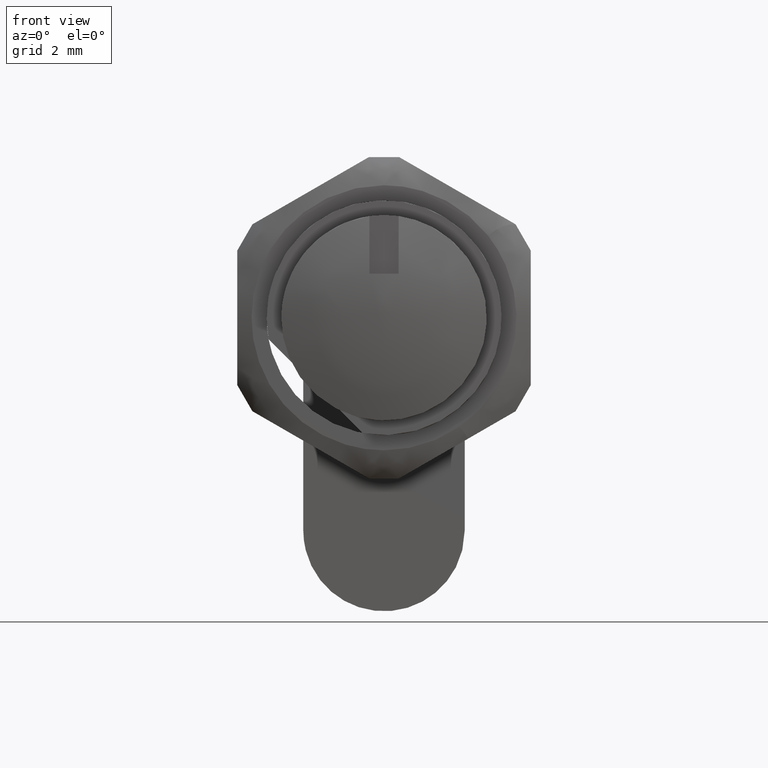
[diagram: clean part render]
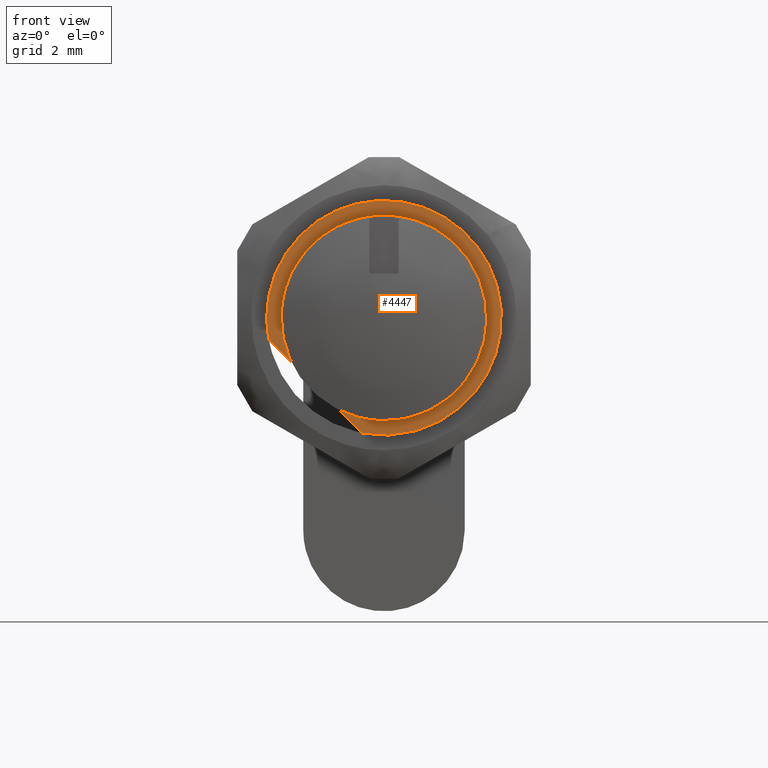
[diagram: same view with one face highlighted and labeled with its STEP entity id]
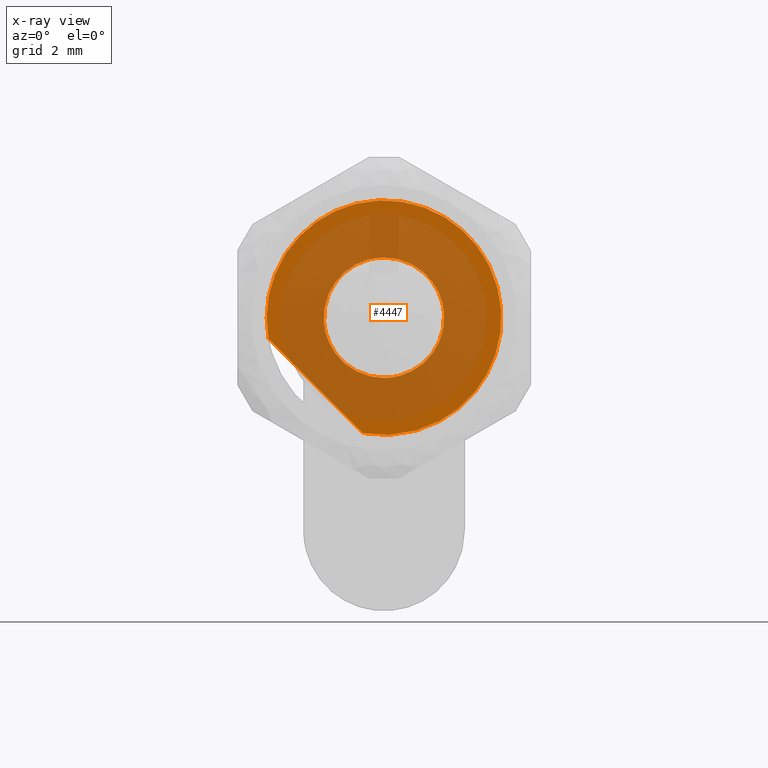
[diagram: x-ray of the same camera — body ghosted, the highlighted face saturated]
A machine part, front view. The second image highlights one B-rep face of the part: STEP entity #4447.
The next image is the same camera in x-ray: the body ghosted, the highlighted face saturated — about 72% of this face is hidden behind the body in this view.
In plain terms, the highlighted face is a freeform B-spline surface patch.
Its self-contained STEP definition (entity closure, byte-faithful):
#3870=CARTESIAN_POINT('',(4.500000000000000,2.043680534062043,176.517780852603210));
#3871=VERTEX_POINT('',#3870);
#3877=CARTESIAN_POINT('',(4.500000000000000,7.105427E-015,174.628622000000010));
#3878=VERTEX_POINT('',#3877);
#3879=CARTESIAN_POINT('',(4.500000000000000,7.105427E-015,174.628622000000010));
#3880=CARTESIAN_POINT('',(4.500000000000000,1.895000505751339,174.628621999999980));
#3881=CARTESIAN_POINT('',(4.500000000000000,2.043680534062042,176.517780852603180));
#3889=(BOUNDED_CURVE()B_SPLINE_CURVE(2,(#3879,#3880,#3881),.UNSPECIFIED.,.F.,.U.)B_SPLINE_CURVE_WITH_KNOTS((3,3),(0.0,0.236331300439055),.UNSPECIFIED.)CURVE()GEOMETRIC_REPRESENTATION_ITEM()RATIONAL_B_SPLINE_CURVE((1.0,0.723120658832144,0.969723355767554))REPRESENTATION_ITEM(''));
#3890=EDGE_CURVE('',#3878,#3871,#3889,.T.);
#3892=CARTESIAN_POINT('',(4.500000000000000,-2.043680534062027,176.839463147396800));
#3893=VERTEX_POINT('',#3892);
#3894=CARTESIAN_POINT('',(4.500000000000000,-2.043680534062028,176.839463147396830));
#3895=CARTESIAN_POINT('',(4.500000000000000,-2.049999999999993,176.759166720525830));
#3896=CARTESIAN_POINT('',(4.500000000000000,-2.049999999999993,176.678621999999990));
#3897=CARTESIAN_POINT('',(4.500000000000000,-2.049999999999994,174.628621999999980));
#3898=CARTESIAN_POINT('',(4.500000000000000,7.105427E-015,174.628622000000010));
#3906=(BOUNDED_CURVE()B_SPLINE_CURVE(2,(#3894,#3895,#3896,#3897,#3898),.UNSPECIFIED.,.F.,.U.)B_SPLINE_CURVE_WITH_KNOTS((3,2,3),(0.736331300439052,0.750000000000000,1.0),.UNSPECIFIED.)CURVE()GEOMETRIC_REPRESENTATION_ITEM()RATIONAL_B_SPLINE_CURVE((0.969723355767547,0.983986122354399,1.0,0.707106781186547,1.0))REPRESENTATION_ITEM(''));
#3907=EDGE_CURVE('',#3893,#3878,#3906,.T.);
#3983=CARTESIAN_POINT('',(4.500000000000000,7.105427E-015,178.728622000000000));
#3984=VERTEX_POINT('',#3983);
#3985=CARTESIAN_POINT('',(4.500000000000000,7.105427E-015,178.728622000000000));
#3986=CARTESIAN_POINT('',(4.500000000000001,-1.895000505751289,178.728622000000030));
#3987=CARTESIAN_POINT('',(4.500000000000000,-2.043680534062028,176.839463147396830));
#3995=(BOUNDED_CURVE()B_SPLINE_CURVE(2,(#3985,#3986,#3987),.UNSPECIFIED.,.F.,.U.)B_SPLINE_CURVE_WITH_KNOTS((3,3),(0.500000000000000,0.736331300439052),.UNSPECIFIED.)CURVE()GEOMETRIC_REPRESENTATION_ITEM()RATIONAL_B_SPLINE_CURVE((1.0,0.723120658832148,0.969723355767548))REPRESENTATION_ITEM(''));
#3996=EDGE_CURVE('',#3984,#3893,#3995,.T.);
#3998=CARTESIAN_POINT('',(4.500000000000000,2.043680534062042,176.517780852603210));
#3999=CARTESIAN_POINT('',(4.500000000000000,2.050000000000007,176.598077279474180));
#4000=CARTESIAN_POINT('',(4.500000000000000,2.050000000000007,176.678621999999990));
#4001=CARTESIAN_POINT('',(4.500000000000000,2.050000000000007,178.728622000000090));
#4002=CARTESIAN_POINT('',(4.500000000000000,7.105427E-015,178.728622000000000));
#4010=(BOUNDED_CURVE()B_SPLINE_CURVE(2,(#3998,#3999,#4000,#4001,#4002),.UNSPECIFIED.,.F.,.U.)B_SPLINE_CURVE_WITH_KNOTS((3,2,3),(0.236331300439055,0.250000000000000,0.500000000000000),.UNSPECIFIED.)CURVE()GEOMETRIC_REPRESENTATION_ITEM()RATIONAL_B_SPLINE_CURVE((0.969723355767554,0.983986122354404,1.0,0.707106781186547,1.0))REPRESENTATION_ITEM(''));
#4011=EDGE_CURVE('',#3871,#3984,#4010,.T.);
#4247=CARTESIAN_POINT('',(4.499999999999949,0.735015641601022,172.746732885770000));
#4248=VERTEX_POINT('',#4247);
#4254=CARTESIAN_POINT('',(4.499999999999949,3.931889114230184,175.943606358398990));
#4255=VERTEX_POINT('',#4254);
#4256=CARTESIAN_POINT('',(4.499999999999949,0.735015641601022,172.746732885770000));
#4257=CARTESIAN_POINT('',(4.499999999999949,3.931889114230184,175.943606358398990));
#4258=QUASI_UNIFORM_CURVE('',1,(#4256,#4257),.UNSPECIFIED.,.F.,.U.);
#4259=EDGE_CURVE('',#4248,#4255,#4258,.T.);
#4307=CARTESIAN_POINT('',(4.499999999999949,0.735015641601054,172.746732885769800));
#4308=CARTESIAN_POINT('',(4.499999999999949,-2.163518267899826,172.204889588744180));
#4309=CARTESIAN_POINT('',(4.499999999999949,-3.538511243755323,174.813430809312790));
#4310=CARTESIAN_POINT('',(4.499999999999949,-4.913504219610821,177.421972029881540));
#4311=CARTESIAN_POINT('',(4.499999999999949,-2.828427124746209,179.507049124746200));
#4312=CARTESIAN_POINT('',(4.499999999999949,-0.743350029881596,181.592126219610800));
#4313=CARTESIAN_POINT('',(4.499999999999949,1.865191190687163,180.217133243755310));
#4314=CARTESIAN_POINT('',(4.499999999999949,4.473732411255917,178.842140267899820));
#4315=CARTESIAN_POINT('',(4.499999999999949,3.931889114230190,175.943606358398990));
#4323=(BOUNDED_CURVE()B_SPLINE_CURVE(2,(#4307,#4308,#4309,#4310,#4311,#4312,#4313,#4314,#4315),.UNSPECIFIED.,.F.,.U.)B_SPLINE_CURVE_WITH_KNOTS((3,2,2,2,3),(0.0,0.250000000000000,0.500000000000000,0.750000000000000,1.0),.UNSPECIFIED.)CURVE()GEOMETRIC_REPRESENTATION_ITEM()RATIONAL_B_SPLINE_CURVE((1.0,0.804923595490585,1.0,0.804923595490585,1.0,0.804923595490585,1.0,0.804923595490585,1.0))REPRESENTATION_ITEM(''));
#4324=EDGE_CURVE('',#4248,#4255,#4323,.T.);
#4432=CARTESIAN_POINT('',(4.500000000000000,-4.391607831327672,181.070233325242100));
#4433=CARTESIAN_POINT('',(4.500000000000000,4.398721197792971,181.070233325242100));
#4434=CARTESIAN_POINT('',(4.500000000000000,-4.391607831327672,172.279894792061410));
#4435=CARTESIAN_POINT('',(4.500000000000000,4.398721197792971,172.279894792061410));
#4436=B_SPLINE_SURFACE_WITH_KNOTS('',1,1,((#4432,#4434),(#4433,#4435)),.UNSPECIFIED.,.F.,.F.,.U.,(2,2),(2,2),(0.0,8.790329029120642),(0.0,8.790338533180631),.UNSPECIFIED.);
#4437=ORIENTED_EDGE('',*,*,#4324,.T.);
#4438=ORIENTED_EDGE('',*,*,#4259,.F.);
#4439=EDGE_LOOP('',(#4437,#4438));
#4440=FACE_OUTER_BOUND('',#4439,.T.);
#4441=ORIENTED_EDGE('',*,*,#3996,.T.);
#4442=ORIENTED_EDGE('',*,*,#3907,.T.);
#4443=ORIENTED_EDGE('',*,*,#3890,.T.);
#4444=ORIENTED_EDGE('',*,*,#4011,.T.);
#4445=EDGE_LOOP('',(#4441,#4442,#4443,#4444));
#4446=FACE_BOUND('',#4445,.T.);
#4447=ADVANCED_FACE('',(#4440,#4446),#4436,.T.);